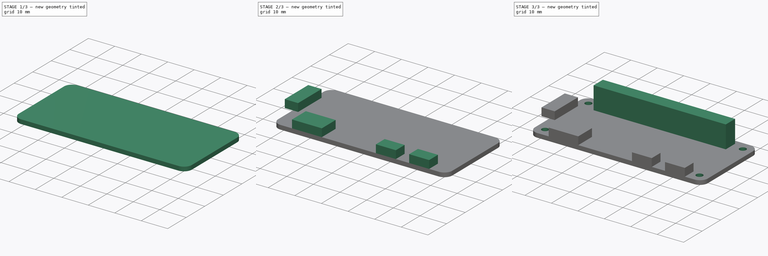
[diagram: build sequence overview — one tinted view per stage of 3, left to right]
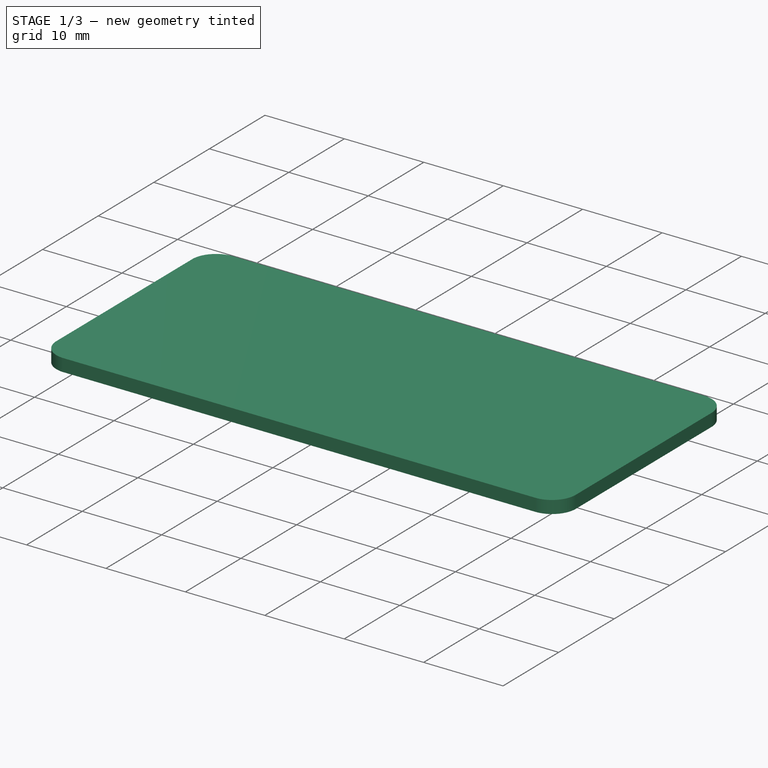
[diagram: stage 1 of 3 — iso view after this stage's code; geometry added in this stage tinted green]
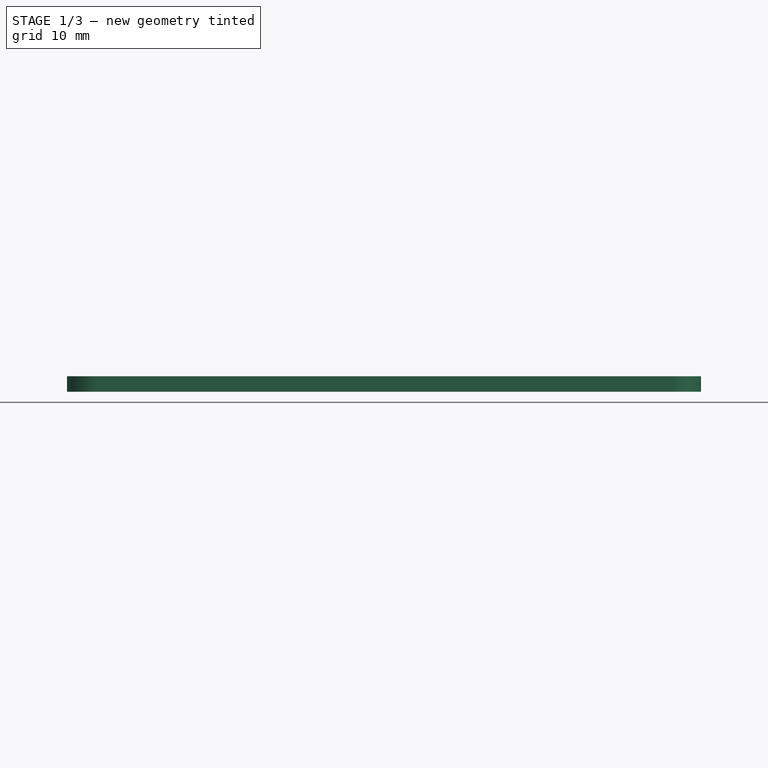
[diagram: stage 1 of 3 — front view after this stage's code; geometry added in this stage tinted green]
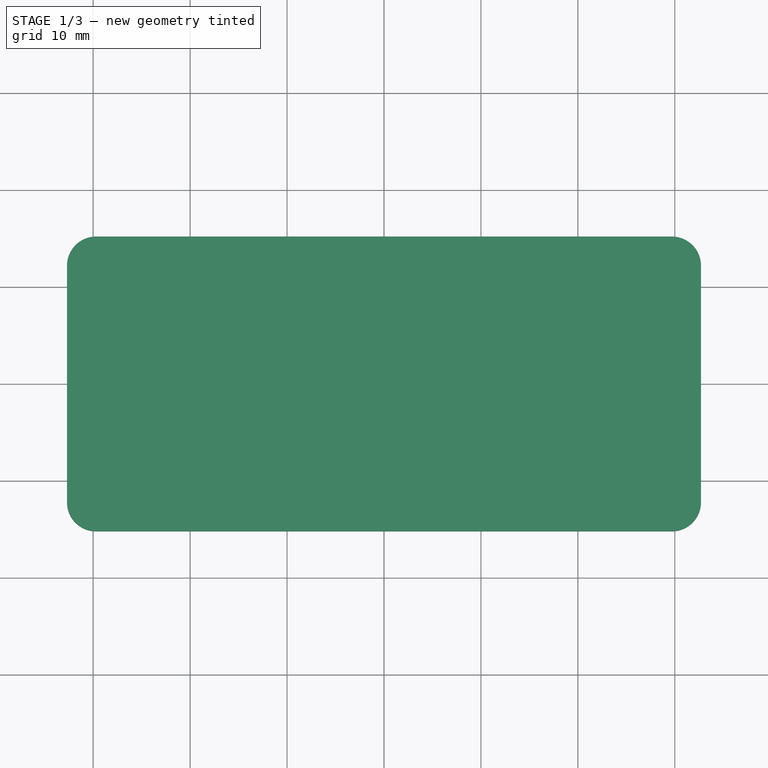
[diagram: stage 1 of 3 — top view after this stage's code; geometry added in this stage tinted green]
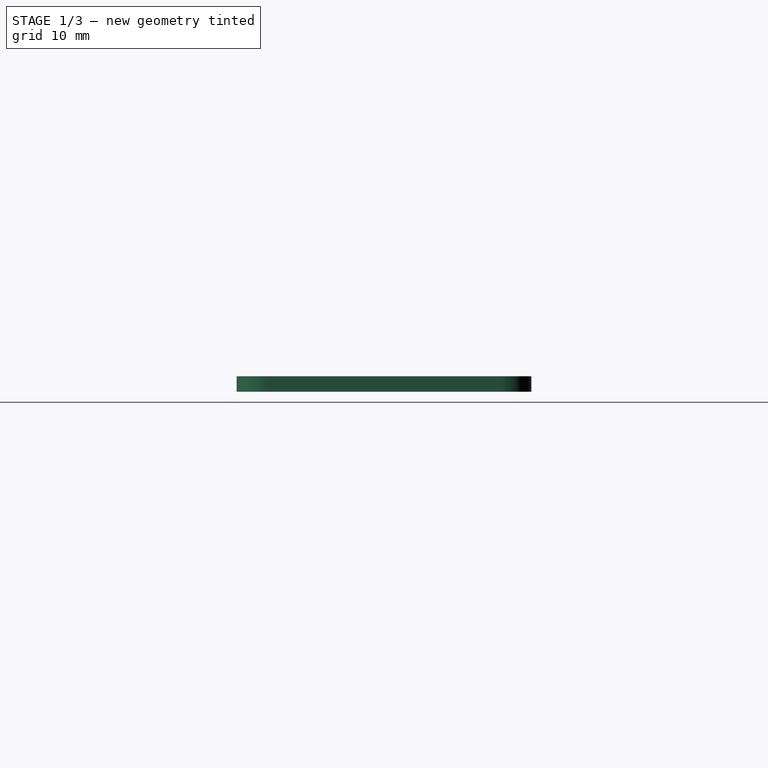
[diagram: stage 1 of 3 — right view after this stage's code; geometry added in this stage tinted green]
FCSTD DOCUMENT  (FreeCAD 0.20R29410 (Git))
Label: RaspberryPiZero
License: All rights reserved
LicenseURL: http://en.wikipedia.org/wiki/All_rights_reserved
objects: Sketcher::SketchObject×5, PartDesign::Pad×3, PartDesign::Fillet×1, PartDesign::Pocket×1, PartDesign::Body×1
note: 16 computed .brp shape members not serialized (recipe doc carries the construction recipe); baked Part::Feature solids carry a one-line shape summary decoded from their .brp

FEATURE [Sketcher::SketchObject] Sketch
  FullyConstrained = true
  MapMode = 5
  Support = -> [XY_Plane]
  sketch-geometry (4):
    g0: LineSegment StartX=-32.7 StartY=15.2 StartZ=0 EndX=32.7 EndY=15.2 EndZ=0
    g1: LineSegment StartX=32.7 StartY=15.2 StartZ=0 EndX=32.7 EndY=-15.2 EndZ=0
    g2: LineSegment StartX=32.7 StartY=-15.2 StartZ=0 EndX=-32.7 EndY=-15.2 EndZ=0
    g3: LineSegment StartX=-32.7 StartY=-15.2 StartZ=0 EndX=-32.7 EndY=15.2 EndZ=0
  constraints (11):
    c: Coincident(g0,g1)
    c: Coincident(g1,g2)
    c: Coincident(g2,g3)
    c: Coincident(g3,g0)
    c: Horizontal(g0)
    c: Horizontal(g2)
    c: Vertical(g1)
    c: Vertical(g3)
    c: Symmetric(g1,g0,g-1)
    c: Distance(g0) = 65.4
    c: Distance(g3) = 30.4
FEATURE [PartDesign::Pad] Pad
  Direction = (1,1,1)
  Length = 1.6
  Length2 = 100
  Profile = -> Sketch
  Type = 0
FEATURE [PartDesign::Fillet] Fillet
  Base = -> Pad [Edge5,Edge8,Edge1,Edge2]
  BaseFeature = -> Pad
  Radius = 3
  SupportTransform = false
  UseAllEdges = false
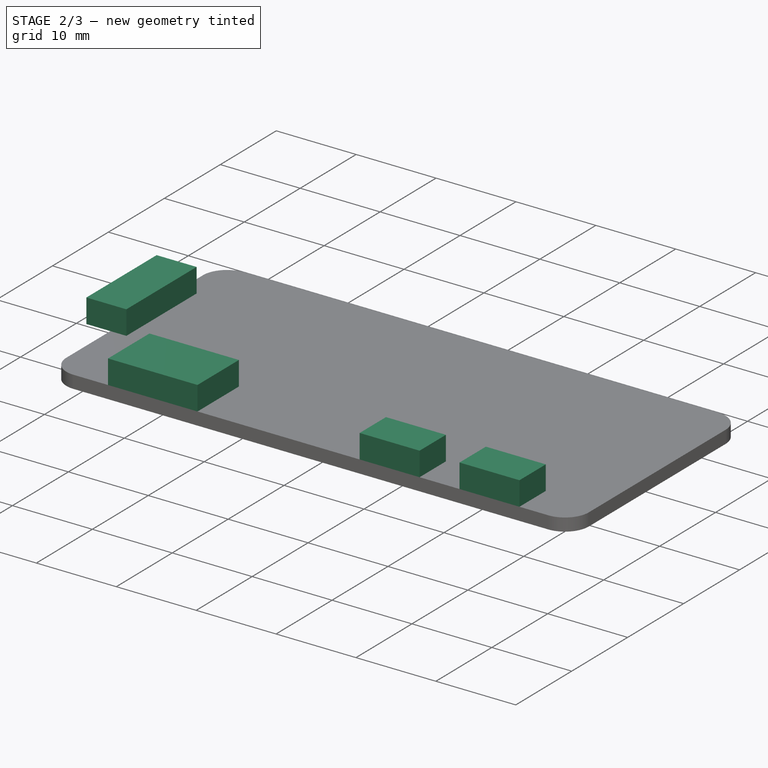
[diagram: stage 2 of 3 — iso view after this stage's code; geometry added in this stage tinted green]
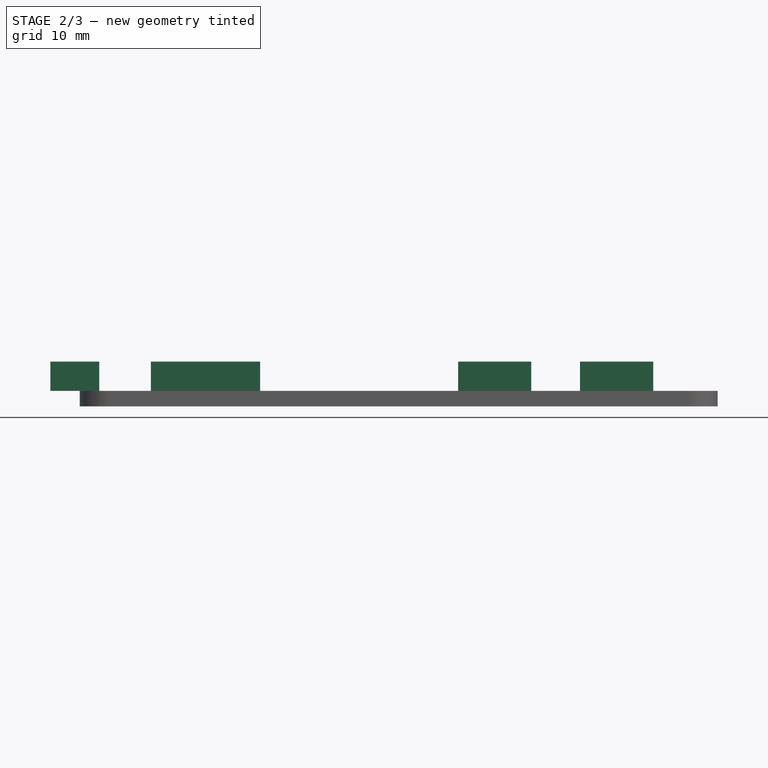
[diagram: stage 2 of 3 — front view after this stage's code; geometry added in this stage tinted green]
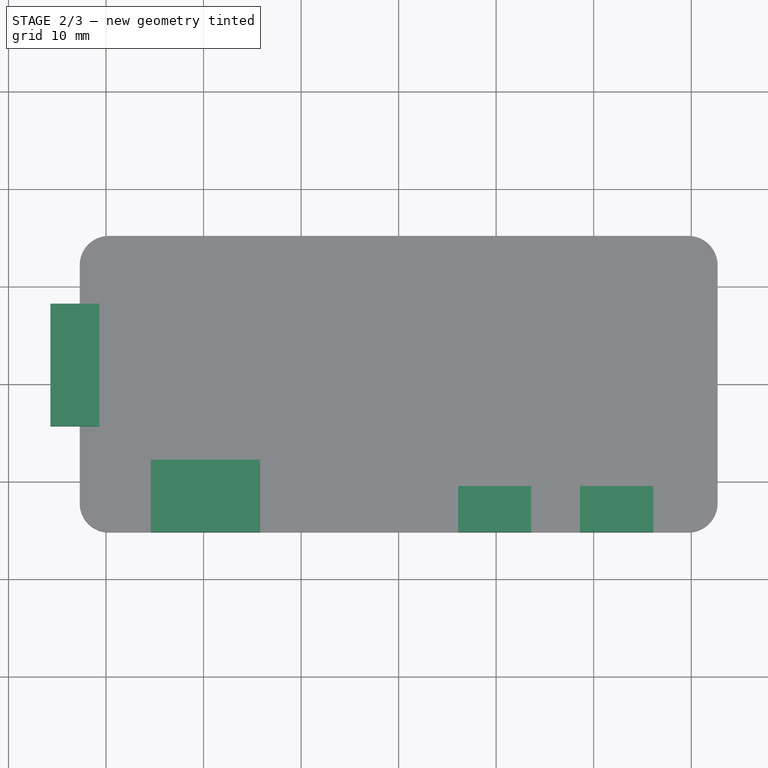
[diagram: stage 2 of 3 — top view after this stage's code; geometry added in this stage tinted green]
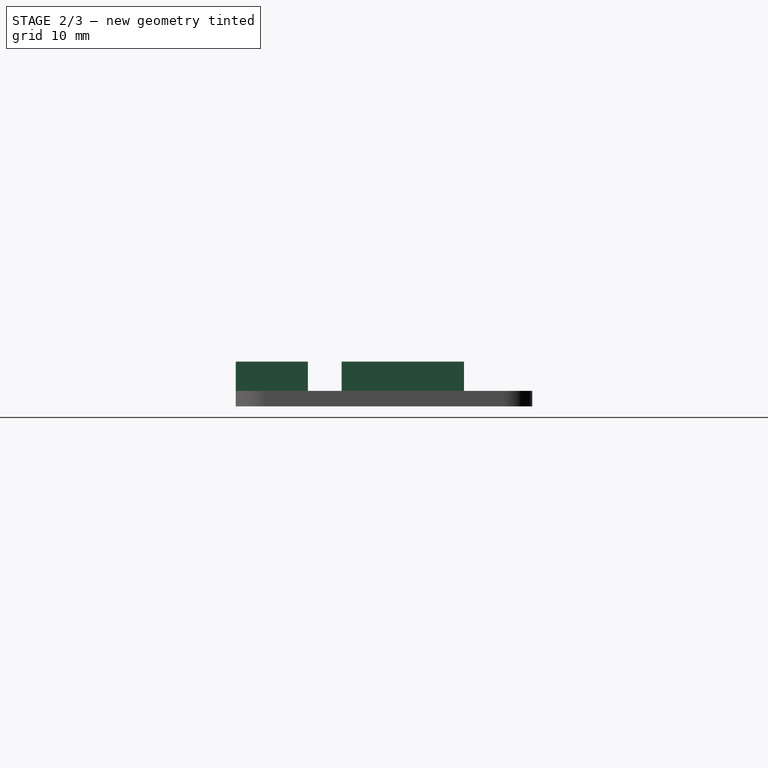
[diagram: stage 2 of 3 — right view after this stage's code; geometry added in this stage tinted green]
FEATURE [Sketcher::SketchObject] Sketch001
  ExternalGeometry = -> [Fillet]
  FullyConstrained = true
  MapMode = 5
  Placement = pos=(0,0,1.6) rot=(0,0,1;0rad)
  Support = -> [Fillet]
  sketch-geometry (16):
    g0: LineSegment StartX=6.1 StartY=-10.5 StartZ=0 EndX=13.6 EndY=-10.5 EndZ=0
    g1: LineSegment StartX=13.6 StartY=-10.5 StartZ=0 EndX=13.6 EndY=-15.2 EndZ=0
    g2: LineSegment StartX=13.6 StartY=-15.2 StartZ=0 EndX=6.1 EndY=-15.2 EndZ=0
    g3: LineSegment StartX=6.1 StartY=-15.2 StartZ=0 EndX=6.1 EndY=-10.5 EndZ=0
    g4: LineSegment StartX=18.6 StartY=-10.5 StartZ=0 EndX=26.1 EndY=-10.5 EndZ=0
    g5: LineSegment StartX=26.1 StartY=-10.5 StartZ=0 EndX=26.1 EndY=-15.2 EndZ=0
    g6: LineSegment StartX=26.1 StartY=-15.2 StartZ=0 EndX=18.6 EndY=-15.2 EndZ=0
    g7: LineSegment StartX=18.6 StartY=-15.2 StartZ=0 EndX=18.6 EndY=-10.5 EndZ=0
    g8: LineSegment StartX=-35.7 StartY=8.2 StartZ=0 EndX=-30.7 EndY=8.2 EndZ=0
    g9: LineSegment StartX=-30.7 StartY=8.2 StartZ=0 EndX=-30.7 EndY=-4.35 EndZ=0
    g10: LineSegment StartX=-30.7 StartY=-4.35 StartZ=0 EndX=-35.7 EndY=-4.35 EndZ=0
    g11: LineSegment StartX=-35.7 StartY=-4.35 StartZ=0 EndX=-35.7 EndY=8.2 EndZ=0
    g12: LineSegment StartX=-25.4 StartY=-7.8 StartZ=0 EndX=-14.2 EndY=-7.8 EndZ=0
    g13: LineSegment StartX=-14.2 StartY=-7.8 StartZ=0 EndX=-14.2 EndY=-15.2 EndZ=0
    g14: LineSegment StartX=-14.2 StartY=-15.2 StartZ=0 EndX=-25.4 EndY=-15.2 EndZ=0
    g15: LineSegment StartX=-25.4 StartY=-15.2 StartZ=0 EndX=-25.4 EndY=-7.8 EndZ=0
  constraints (48):
    c: Coincident(g0,g1)
    c: Coincident(g1,g2)
    c: Coincident(g2,g3)
    c: Coincident(g3,g0)
    c: Horizontal(g0)
    c: Horizontal(g2)
    c: Vertical(g1)
    c: Vertical(g3)
    c: PointOnObject(g1,g-3)
    c: Coincident(g4,g5)
    c: Coincident(g5,g6)
    c: Coincident(g6,g7)
    c: Coincident(g7,g4)
    c: Horizontal(g4)
    c: Horizontal(g6)
    c: Vertical(g5)
    c: Vertical(g7)
    c: PointOnObject(g5,g-3)
    c: Coincident(g8,g9)
    c: Coincident(g9,g10)
    c: Coincident(g10,g11)
    c: Coincident(g11,g8)
    c: Horizontal(g8)
    c: Horizontal(g10)
    c: Vertical(g9)
    c: Vertical(g11)
    c: DistanceY(g8,g-5) = 7
    c: Distance(g9) = 12.55
    c: DistanceX(g10,g-4) = 3
    c: Distance(g10) = 5
    c: DistanceX(g4,g-6) = 6.6
    c: Distance(g4) = 7.5
    c: Distance(g5) = 4.7
    c: DistanceX(g1,g6) = 5
    c: Distance(g0) = 7.5
    c: Distance(g3) = 4.7
    c: Coincident(g12,g13)
    c: Coincident(g13,g14)
    c: Coincident(g14,g15)
    c: Coincident(g15,g12)
    c: Horizontal(g12)
    c: Horizontal(g14)
    c: Vertical(g13)
    c: Vertical(g15)
    c: PointOnObject(g13,g-3)
    c: Distance(g12) = 11.2
    c: Distance(g13) = 7.4
    c: DistanceX(g-4,g12) = 7.3
FEATURE [PartDesign::Pad] Pad001
  BaseFeature = -> Fillet
  Direction = (1,1,1)
  Length = 3
  Length2 = 100
  Profile = -> Sketch001
  Type = 0
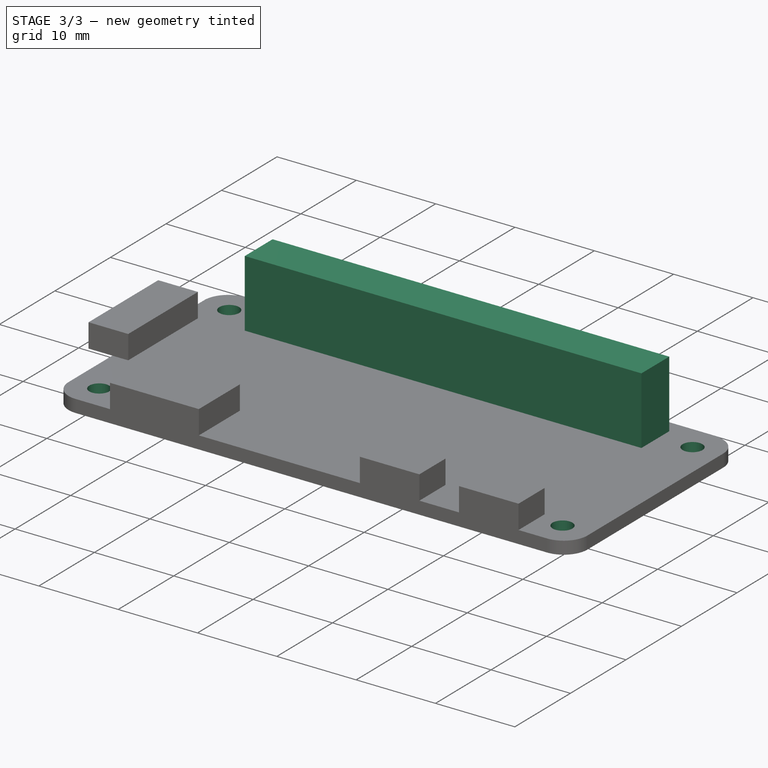
[diagram: stage 3 of 3 — iso view after this stage's code; geometry added in this stage tinted green]
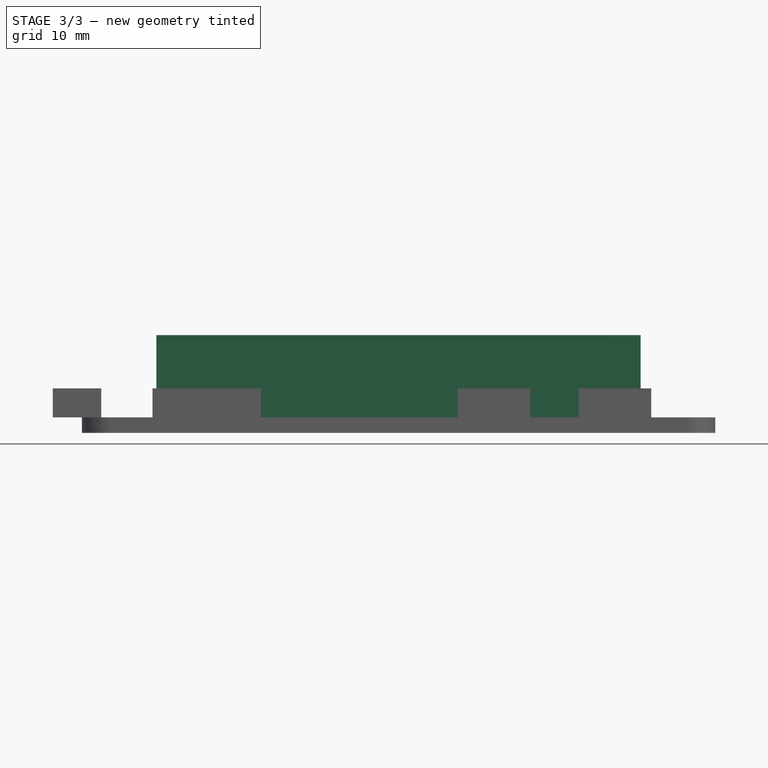
[diagram: stage 3 of 3 — front view after this stage's code; geometry added in this stage tinted green]
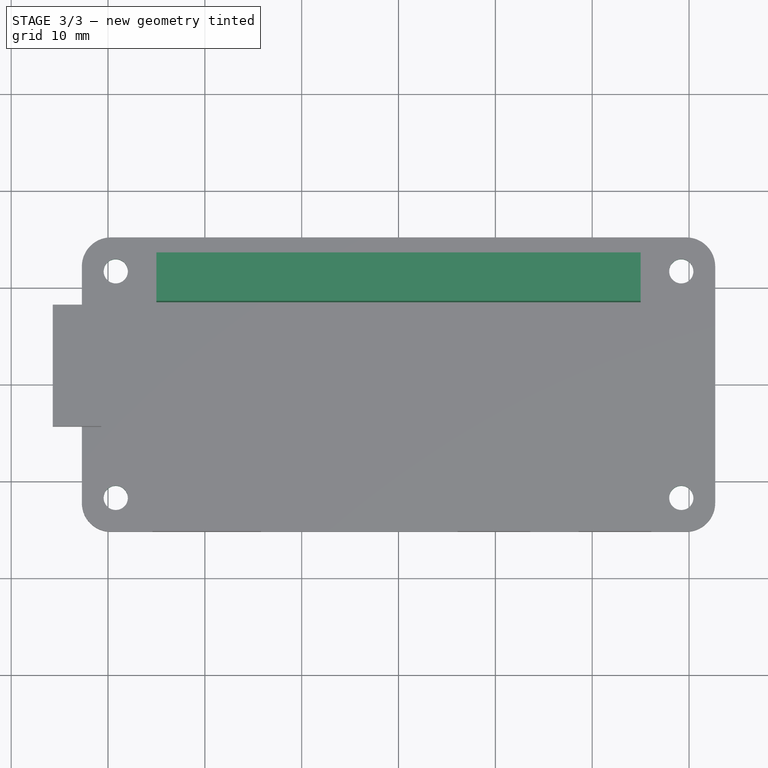
[diagram: stage 3 of 3 — top view after this stage's code; geometry added in this stage tinted green]
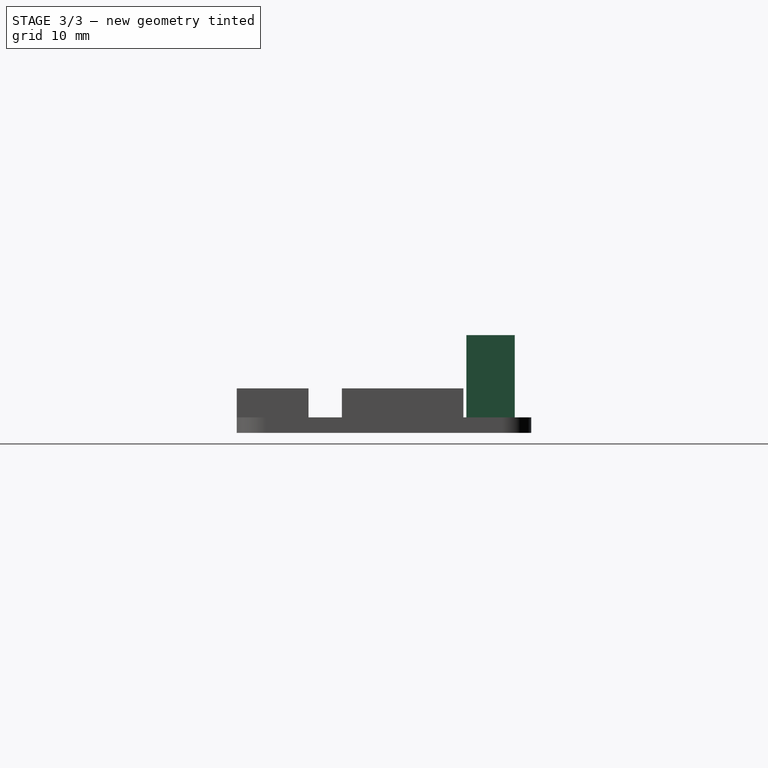
[diagram: stage 3 of 3 — right view after this stage's code; geometry added in this stage tinted green]
FEATURE [Sketcher::SketchObject] Sketch002
  ExternalGeometry = -> [Pad001]
  FullyConstrained = false
  MapMode = 5
  Placement = pos=(0,0,0) rot=(1,0,0;3.14159rad)
  Support = -> [Pad001]
  sketch-geometry (6):
    g0: Circle CenterX=-29.2 CenterY=11.7 CenterZ=0 NormalX=0 NormalY=0 NormalZ=1 AngleXU=0 Radius=1.25
    g1: Circle CenterX=29.2 CenterY=-11.7 CenterZ=0 NormalX=0 NormalY=0 NormalZ=1 AngleXU=0 Radius=1.25
    g2: Circle CenterX=29.2 CenterY=11.7 CenterZ=0 NormalX=0 NormalY=0 NormalZ=1 AngleXU=0 Radius=1.25
    g3: Circle CenterX=-29.2 CenterY=-11.7 CenterZ=0 NormalX=0 NormalY=0 NormalZ=1 AngleXU=0 Radius=1.25
    g4: LineSegment StartX=30.45 StartY=-8.69242 StartZ=0 EndX=30.45 EndY=-11.7 EndZ=0
    g5: LineSegment StartX=27.3788 StartY=-12.95 StartZ=0 EndX=31.067 EndY=-12.95 EndZ=0
  constraints (17):
    c: Equal(g3,g0)
    c: Equal(g0,g2)
    c: Equal(g2,g1)
    c: Symmetric(g0,g1,g-1)
    c: Symmetric(g2,g3,g-1)
    c: Vertical(g3,g0)
    c: Horizontal(g1,g3)
    c: Radius(g1) = 1.25
    c: PointOnObject(g4,g1)
    c: Vertical(g4)
    c: Tangent(g5,g1)
    c: Tangent(g1,g4)
    c: Horizontal(g5)
    c: DistanceX(g4,g-5) = 2.25
    c: DistanceY(g-6,g5) = 2.25
    c: DistanceX(g0) = -29.2
    c: DistanceY(g0) = 11.7
FEATURE [PartDesign::Pocket] Pocket
  BaseFeature = -> Pad001
  Direction = (0,0,1)
  Length = 5
  Length2 = 100
  Profile = -> Sketch002
  Type = 0
FEATURE [Sketcher::SketchObject] Sketch003
  FullyConstrained = true
  MapMode = 5
  Placement = pos=(0,0,1.6) rot=(0,0,1;0rad)
  Support = -> [Pocket]
  sketch-geometry (4):
    g0: LineSegment StartX=-25 StartY=13.5 StartZ=0 EndX=25 EndY=13.5 EndZ=0
    g1: LineSegment StartX=25 StartY=13.5 StartZ=0 EndX=25 EndY=8.5 EndZ=0
    g2: LineSegment StartX=25 StartY=8.5 StartZ=0 EndX=-25 EndY=8.5 EndZ=0
    g3: LineSegment StartX=-25 StartY=8.5 StartZ=0 EndX=-25 EndY=13.5 EndZ=0
  constraints (11):
    c: Coincident(g0,g1)
    c: Coincident(g1,g2)
    c: Coincident(g2,g3)
    c: Coincident(g3,g0)
    c: Horizontal(g0)
    c: Vertical(g1)
    c: Vertical(g3)
    c: Symmetric(g2,g1,g-2)
    c: DistanceY(g1,g1) = 5
    c: DistanceX(g0,g0) = 50
    c: DistanceY(g2) = 8.5
FEATURE [PartDesign::Pad] Pad002
  BaseFeature = -> Pocket
  Direction = (0,0,1)
  Length = 8.5
  Length2 = 10
  Profile = -> Sketch003
  ReferenceAxis = -> Sketch003 [N_Axis]
  Type = 0
FEATURE [Sketcher::SketchObject] Sketch004
  ExternalGeometry = -> [Pad002]
  FullyConstrained = true
  MapMode = 5
  Support = -> [XY_Plane]
  constraints (2):
    c: DistanceX(g-3,g-1) = 29.2
    c: DistanceY(g-4,g-3) = 23.4
FEATURE [PartDesign::Body] Body
  Group = -> [Sketch,Pad,Fillet,Sketch001,Pad001,Sketch002,Pocket,Sketch003,Pad002,Sketch004]
  Origin = -> Origin
  Tip = -> Pad002
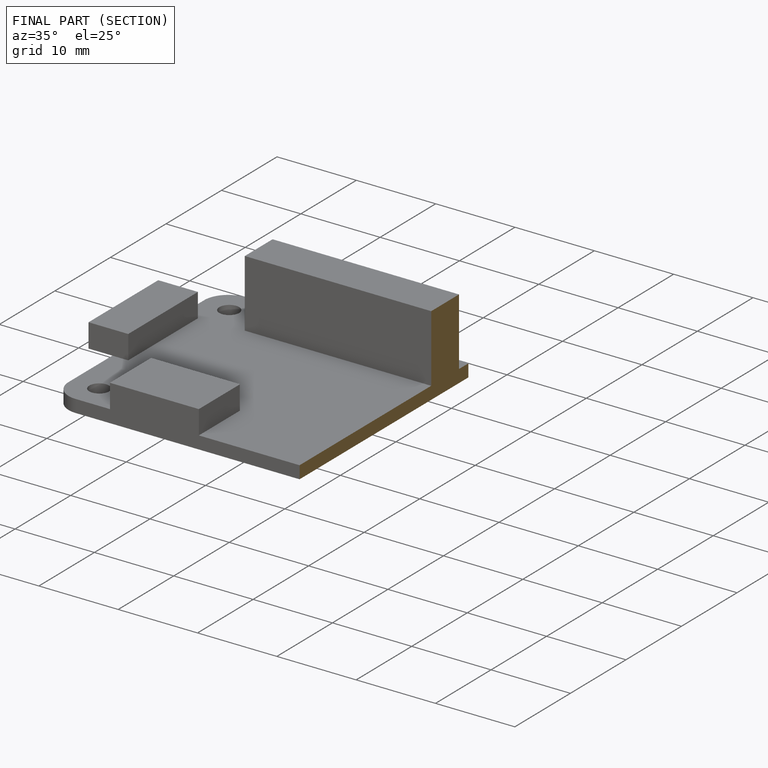
[diagram: finished part — half-section view (interior)]
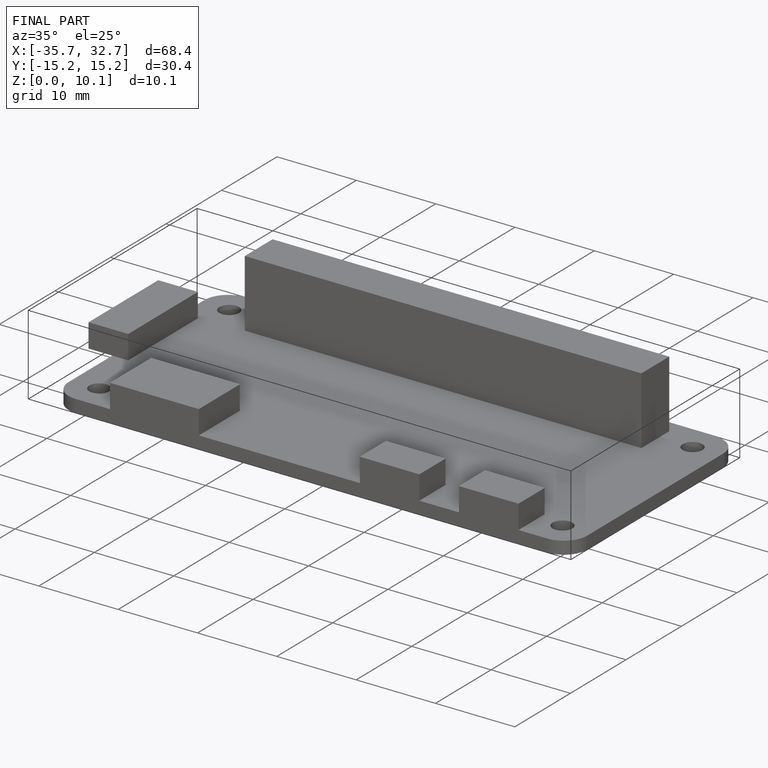
[diagram: finished part — iso view with bounding-box wireframe]
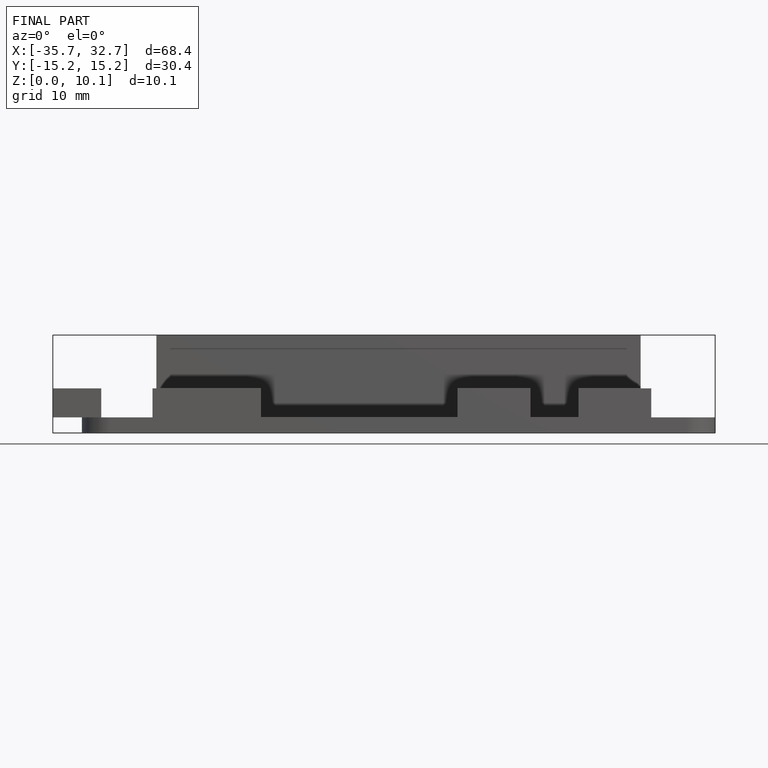
[diagram: finished part — front view with bounding-box wireframe]
